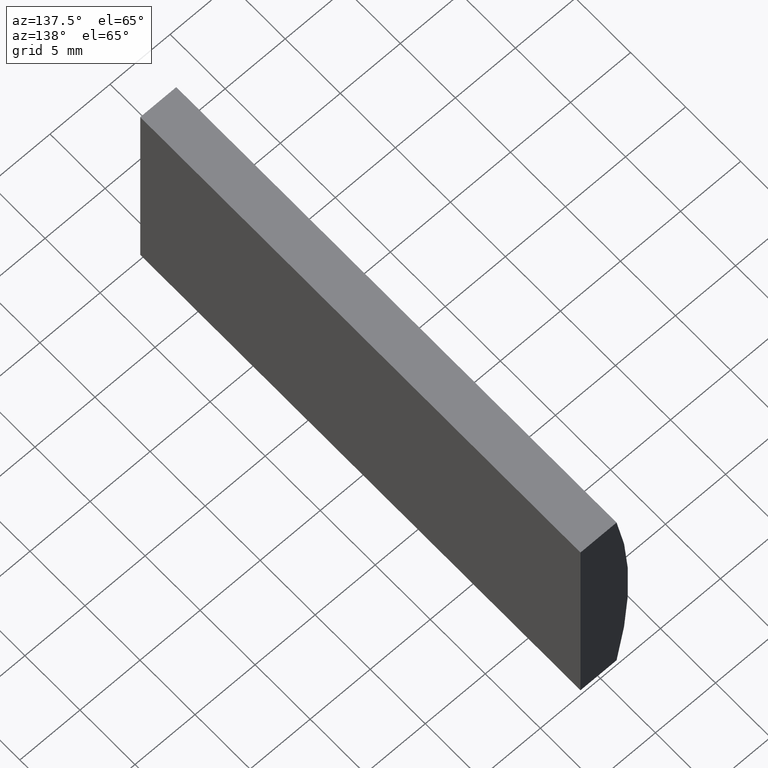
[diagram: clean part render]
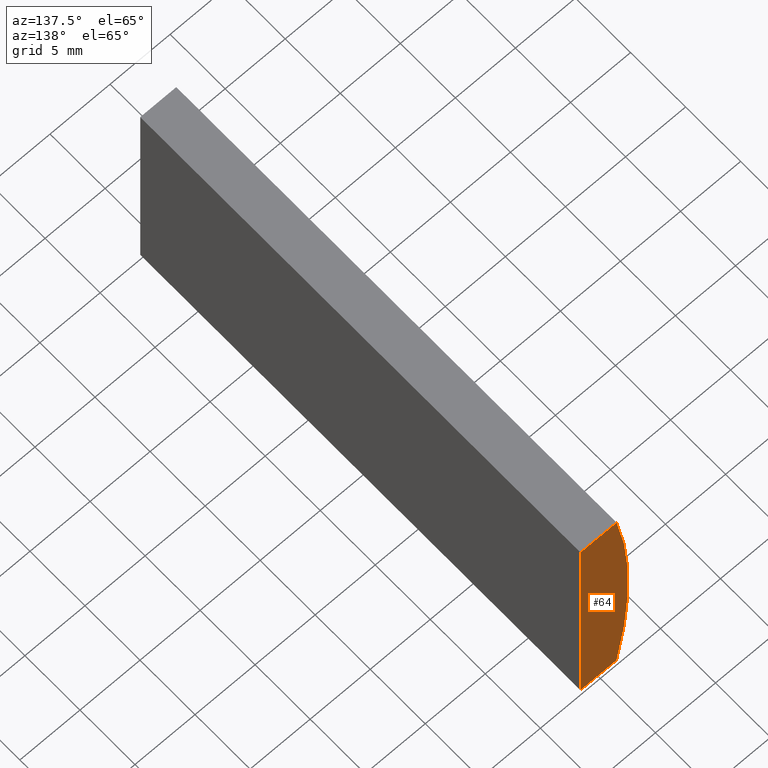
[diagram: same view with one face highlighted and labeled with its STEP entity id]
A machine part, auxiliary view. The second image highlights one B-rep face of the part: STEP entity #64.
In plain terms, the highlighted planar face has unit normal (0, 1, 0).
Its self-contained STEP definition (entity closure, byte-faithful):
#2 = ORIENTED_EDGE ( 'NONE', *, *, #190, .T. ) ;
#3 = EDGE_LOOP ( 'NONE', ( #181, #153, #2, #163 ) ) ;
#10 = CARTESIAN_POINT ( 'NONE',  ( -46.34807366568830400, 40.00000000000000000, 10.00000000000000000 ) ) ;
#22 = PLANE ( 'NONE',  #133 ) ;
#34 = CARTESIAN_POINT ( 'NONE',  ( -43.34479566514873700, 40.00000000000000000, -9.999999999999992900 ) ) ;
#41 = EDGE_CURVE ( 'NONE', #79, #136, #54, .T. ) ;
#46 = EDGE_CURVE ( 'NONE', #195, #79, #151, .T. ) ;
#54 = CIRCLE ( 'NONE', #67, 51.68000000000000700 ) ;
#57 = LINE ( 'NONE', #10, #65 ) ;
#64 = ADVANCED_FACE ( 'NONE', ( #66 ), #22, .T. ) ;
#65 = VECTOR ( 'NONE', #184, 1000.000000000000000 ) ;
#66 = FACE_OUTER_BOUND ( 'NONE', #3, .T. ) ;
#67 = AXIS2_PLACEMENT_3D ( 'NONE', #194, #196, #201 ) ;
#72 = CARTESIAN_POINT ( 'NONE',  ( -46.34807366568831100, 40.00000000000000000, -10.00000000000000000 ) ) ;
#79 = VERTEX_POINT ( 'NONE', #72 ) ;
#91 = DIRECTION ( 'NONE',  ( 0.0000000000000000000, -0.0000000000000000000, 1.000000000000000000 ) ) ;
#94 = VERTEX_POINT ( 'NONE', #134 ) ;
#111 = DIRECTION ( 'NONE',  ( 0.0000000000000000000, 1.000000000000000000, 0.0000000000000000000 ) ) ;
#118 = CARTESIAN_POINT ( 'NONE',  ( -46.34807366568830400, 40.00000000000000000, 10.00000000000000000 ) ) ;
#129 = VECTOR ( 'NONE', #169, 1000.000000000000000 ) ;
#133 = AXIS2_PLACEMENT_3D ( 'NONE', #204, #111, #91 ) ;
#134 = CARTESIAN_POINT ( 'NONE',  ( -43.34479566514873000, 40.00000000000000000, 10.00000000000000000 ) ) ;
#136 = VERTEX_POINT ( 'NONE', #118 ) ;
#139 = EDGE_CURVE ( 'NONE', #136, #94, #57, .T. ) ;
#145 = CARTESIAN_POINT ( 'NONE',  ( -43.34479566514873700, 40.00000000000000000, -9.999999999999992900 ) ) ;
#151 = LINE ( 'NONE', #183, #129 ) ;
#153 = ORIENTED_EDGE ( 'NONE', *, *, #139, .T. ) ;
#163 = ORIENTED_EDGE ( 'NONE', *, *, #46, .T. ) ;
#165 = VECTOR ( 'NONE', #198, 1000.000000000000000 ) ;
#169 = DIRECTION ( 'NONE',  ( -1.000000000000000000, -0.0000000000000000000, -2.310440093344863800E-015 ) ) ;
#181 = ORIENTED_EDGE ( 'NONE', *, *, #41, .T. ) ;
#183 = CARTESIAN_POINT ( 'NONE',  ( -46.34807366568831100, 40.00000000000000000, -10.00000000000000000 ) ) ;
#184 = DIRECTION ( 'NONE',  ( 1.000000000000000000, 0.0000000000000000000, 0.0000000000000000000 ) ) ;
#190 = EDGE_CURVE ( 'NONE', #94, #195, #192, .T. ) ;
#192 = LINE ( 'NONE', #145, #165 ) ;
#194 = CARTESIAN_POINT ( 'NONE',  ( 4.355204334851265500, 40.00000000000000000, 4.286263797015675000E-017 ) ) ;
#195 = VERTEX_POINT ( 'NONE', #34 ) ;
#196 = DIRECTION ( 'NONE',  ( 0.0000000000000000000, 1.000000000000000000, 0.0000000000000000000 ) ) ;
#198 = DIRECTION ( 'NONE',  ( -3.469446951953615200E-016, -0.0000000000000000000, -1.000000000000000000 ) ) ;
#201 = DIRECTION ( 'NONE',  ( 0.0000000000000000000, 0.0000000000000000000, 1.000000000000000000 ) ) ;
#204 = CARTESIAN_POINT ( 'NONE',  ( 4.355204334851265500, 40.00000000000000000, 4.286263797015675000E-017 ) ) ;